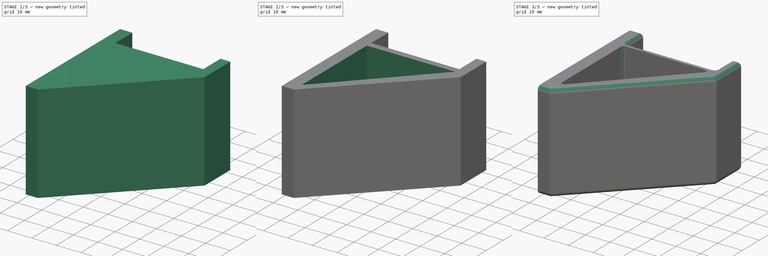
[diagram: build sequence overview — one tinted view per stage of 3, left to right]
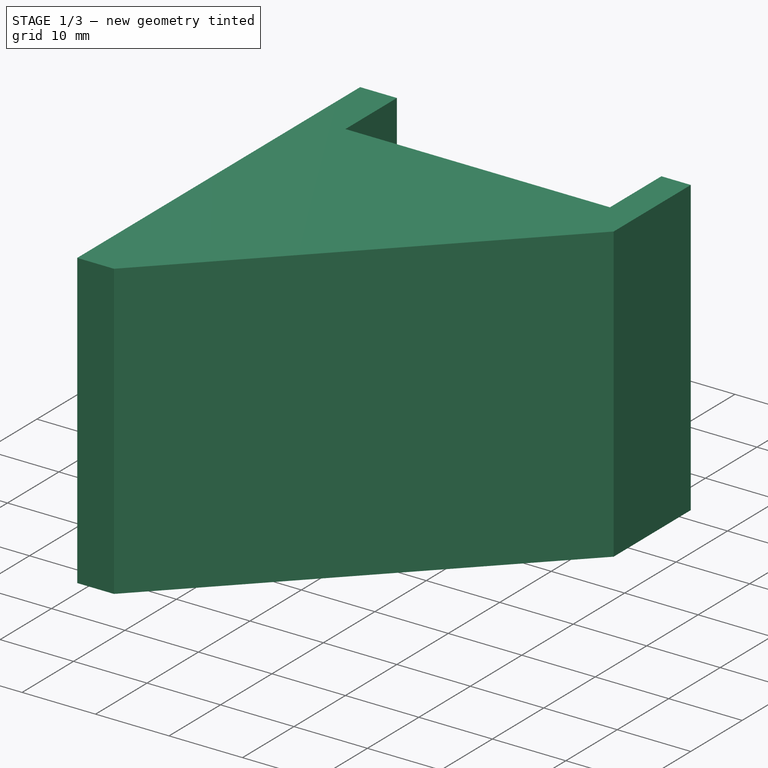
[diagram: stage 1 of 3 — iso view after this stage's code; geometry added in this stage tinted green]
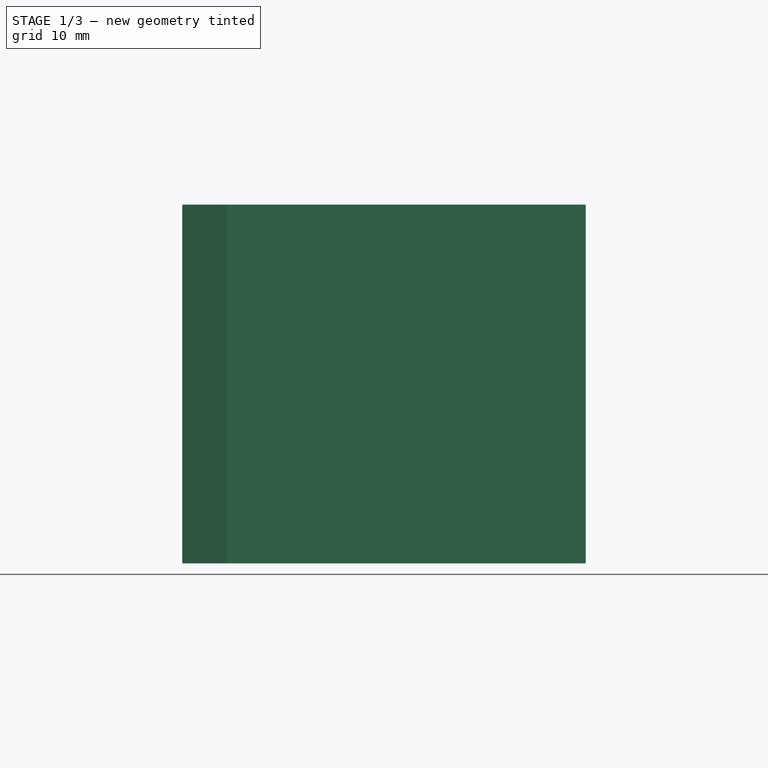
[diagram: stage 1 of 3 — front view after this stage's code; geometry added in this stage tinted green]
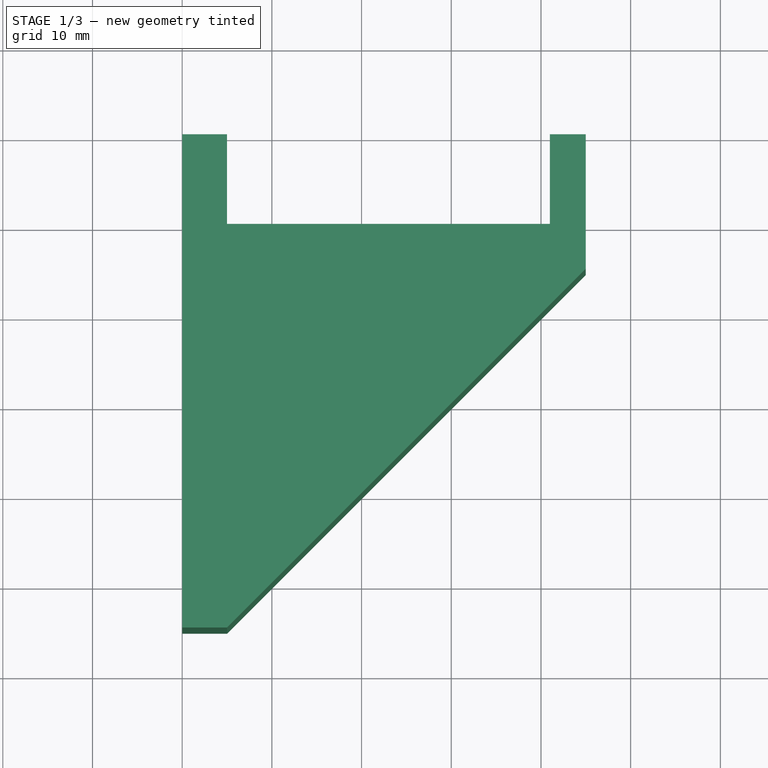
[diagram: stage 1 of 3 — top view after this stage's code; geometry added in this stage tinted green]
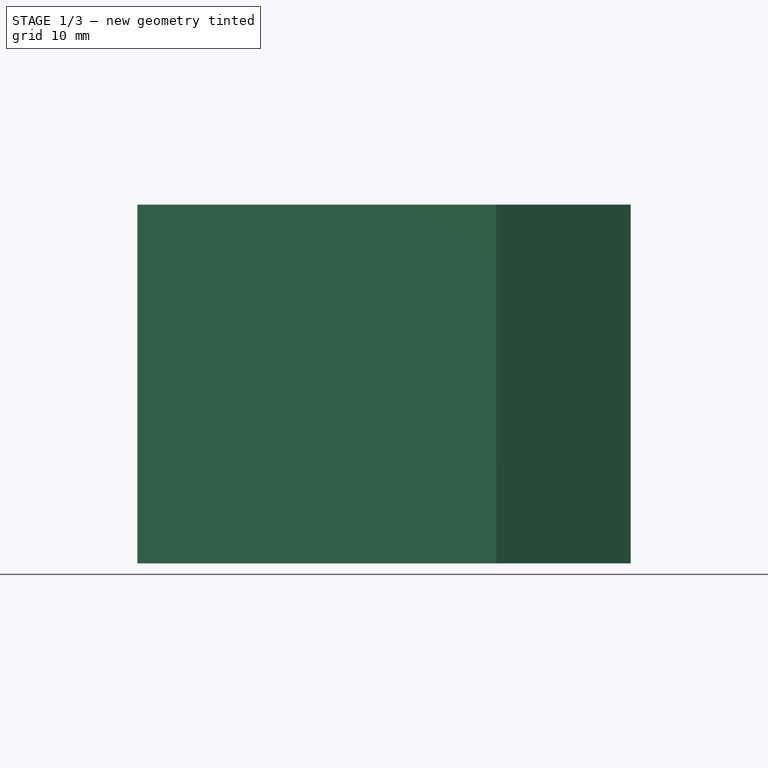
[diagram: stage 1 of 3 — right view after this stage's code; geometry added in this stage tinted green]
FCSTD DOCUMENT  (FreeCAD 1.0R38806 (Git))
Label: hook_support
License: All rights reserved
LicenseURL: https://en.wikipedia.org/wiki/All_rights_reserved
objects: Sketcher::SketchObject×3, PartDesign::Pocket×2, PartDesign::Fillet×2, Spreadsheet::Sheet×1, PartDesign::Pad×1, PartDesign::Body×1
note: 22 computed .brp shape members not serialized (recipe doc carries the construction recipe); baked Part::Feature solids carry a one-line shape summary decoded from their .brp

FEATURE [Spreadsheet::Sheet] Spreadsheet  label="settings"
  cells = A1='total hook width; B1(hook_total_width)=40; A2='total hook length; B2(hook_total_length)=45; A3='total hook height; B3(hook_total_height)=55; A4='hook plate thickness; B4(hook_plate_thickness)=5; A5='hook position from bot; B5(hook_position_from_bot)=45; A6='hook thickness; B6(hook_thickness)=5; A7='hook lip thickness; B7(hook_lip_thickness)=4; A8='hook lip height; B8(hook_lip_height)=10; A9='hook fillet; B9(hook_fillet)=1; A10='hook support thickness; B10(hook_support_thickness)=2; A11='hook side fillet; B11(side_fillet)=1.8; A12='Calculations; A13='half hook thickness; B13(hook_thickness_half)==hook_thickness / 2; C13='Actual hook length; D13==hook_total_length - hook_plate_thickness - hook_lip_thickness; A14='support pocket depth; B14(hook_support_pocket)==(hook_total_width - hook_support_thickness) / 2; A15='Annoying bottom support offset; B15(annoying_bottom_support_offset)==hook_lip_thickness / 2
FEATURE [Sketcher::SketchObject] Sketch
  ArcFitTolerance = 1e-06
  AttachmentSupport = -> [XY_Plane]
  FullyConstrained = true
  MakeInternals = false
  MapMode = 5
  expr: Constraints[10] = <<settings>>.hook_total_height
  expr: Constraints[14] = Spreadsheet.hook_plate_thickness
  expr: Constraints[21] = <<settings>>.hook_position_from_bot
  expr: Constraints[25] = <<settings>>.hook_lip_thickness
  expr: Constraints[34] = <<settings>>.hook_lip_height
  expr: Constraints[35] = <<settings>>.hook_thickness
  expr: Constraints[9] = <<settings>>.hook_total_length
  sketch-geometry (14):
    g0: LineSegment StartX=0 StartY=0 StartZ=0 EndX=0 EndY=-55 EndZ=0
    g1: LineSegment [constr] StartX=0 StartY=-55 StartZ=0 EndX=45 EndY=-55 EndZ=0
    g2: LineSegment [constr] StartX=45 StartY=-55 StartZ=0 EndX=45 EndY=0 EndZ=0
    g3: LineSegment [constr] StartX=45 StartY=0 StartZ=0 EndX=0 EndY=0 EndZ=0
    g4: LineSegment [constr] StartX=5 StartY=0 StartZ=0 EndX=5 EndY=-55 EndZ=0
    g5: LineSegment StartX=0 StartY=0 StartZ=0 EndX=5 EndY=0 EndZ=0
    g6: LineSegment StartX=5 StartY=0 StartZ=0 EndX=5 EndY=-10 EndZ=0
    g7: LineSegment StartX=5 StartY=-10 StartZ=0 EndX=41 EndY=-10 EndZ=0
    g8: LineSegment [constr] StartX=41 StartY=0 StartZ=0 EndX=41 EndY=-55 EndZ=0
    g9: LineSegment StartX=41 StartY=-10 StartZ=0 EndX=41 EndY=8.9e-15 EndZ=0
    g10: LineSegment StartX=41 StartY=8.9e-15 StartZ=0 EndX=45 EndY=8.9e-15 EndZ=0
    g11: LineSegment StartX=45 StartY=8.9e-15 StartZ=0 EndX=45 EndY=-15 EndZ=0
    g12: LineSegment StartX=45 StartY=-15 StartZ=0 EndX=5 EndY=-55 EndZ=0
    g13: LineSegment StartX=0 StartY=-55 StartZ=0 EndX=5 EndY=-55 EndZ=0
  constraints (40):
    c: Coincident(g0,g1)
    c: Coincident(g1,g2)
    c: Coincident(g2,g3)
    c: Coincident(g3,g0)
    c: Vertical(g0)
    c: Vertical(g2)
    c: Horizontal(g1)
    c: Horizontal(g3)
    c: Coincident(g0,g-1)
    c: DistanceX(g3,g3) = 45
    c: DistanceY(g0,g0) = 55
    c: PointOnObject(g4,g3)
    c: PointOnObject(g4,g1)
    c: Vertical(g4)
    c: DistanceX(g0,g4) = 5
    c: Coincident(g5,g0)
    c: Coincident(g5,g4)
    c: Coincident(g6,g4)
    c: PointOnObject(g6,g4)
    c: Coincident(g7,g6)
    c: Horizontal(g7)
    c: DistanceY(g4,g6) = 45
    c: PointOnObject(g8,g3)
    c: PointOnObject(g8,g1)
    c: Vertical(g8)
    c: DistanceX(g8,g2) = 4
    c: PointOnObject(g7,g8)
    c: Coincident(g9,g7)
    c: PointOnObject(g9,g8)
    c: Coincident(g10,g9)
    c: PointOnObject(g10,g2)
    c: Horizontal(g10)
    c: Coincident(g11,g10)
    c: PointOnObject(g11,g2)
    c: DistanceY(g7,g9) = 10
    c: DistanceY(g11,g7) = 5
    c: Coincident(g12,g11)
    c: Coincident(g12,g4)
    c: Coincident(g13,g0)
    c: Coincident(g13,g4)
FEATURE [PartDesign::Pad] Pad  label="main_pad"
  Direction = (0,0,1)
  Length = 40
  Length2 = 10
  Profile = -> Sketch
  ReferenceAxis = -> Sketch [N_Axis]
  Refine = true
  Suppressed = false
  Type = 0
  expr: Length = <<settings>>.hook_total_width
FEATURE [Sketcher::SketchObject] Sketch001
  ArcFitTolerance = 1e-06
  AttachmentSupport = -> [Pad]
  ExternalGeometry = -> [Pad]
  FullyConstrained = true
  MakeInternals = false
  MapMode = 5
  Placement = pos=(0,0,0) rot=(1,0,0;3.14159rad)
  expr: Constraints[7] = <<settings>>.hook_thickness_half
  expr: Constraints[8] = <<settings>>.hook_thickness_half + <<settings>>.annoying_bottom_support_offset
  sketch-geometry (3):
    g0: LineSegment StartX=5 StartY=12.5 StartZ=0 EndX=5 EndY=50.5 EndZ=0
    g1: LineSegment StartX=5 StartY=50.5 StartZ=0 EndX=41 EndY=12.5 EndZ=0
    g2: LineSegment StartX=41 StartY=12.5 StartZ=0 EndX=5 EndY=12.5 EndZ=0
  constraints (9):
    c: Vertical(g0)
    c: Coincident(g1,g0)
    c: Coincident(g2,g1)
    c: Horizontal(g2)
    c: Coincident(g0,g2)
    c: Vertical(g0,g-3)
    c: Vertical(g1,g-3)
    c: DistanceY(g-3,g0) = 2.5
    c: DistanceY(g0,g-4) = 4.5
FEATURE [PartDesign::Pocket] Pocket  label="right_support_pocket"
  BaseFeature = -> Pad
  Direction = (0,0,1)
  Length = 19
  Length2 = 5
  Profile = -> Sketch001
  ReferenceAxis = -> Sketch001 [N_Axis]
  Refine = true
  Suppressed = false
  Type = 0
  expr: Length = <<settings>>.hook_support_pocket
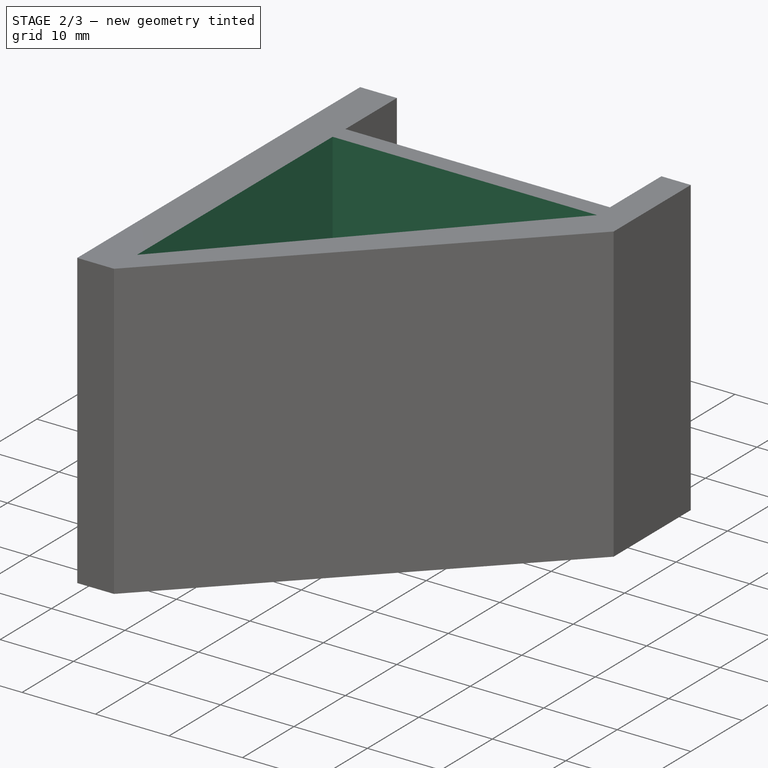
[diagram: stage 2 of 3 — iso view after this stage's code; geometry added in this stage tinted green]
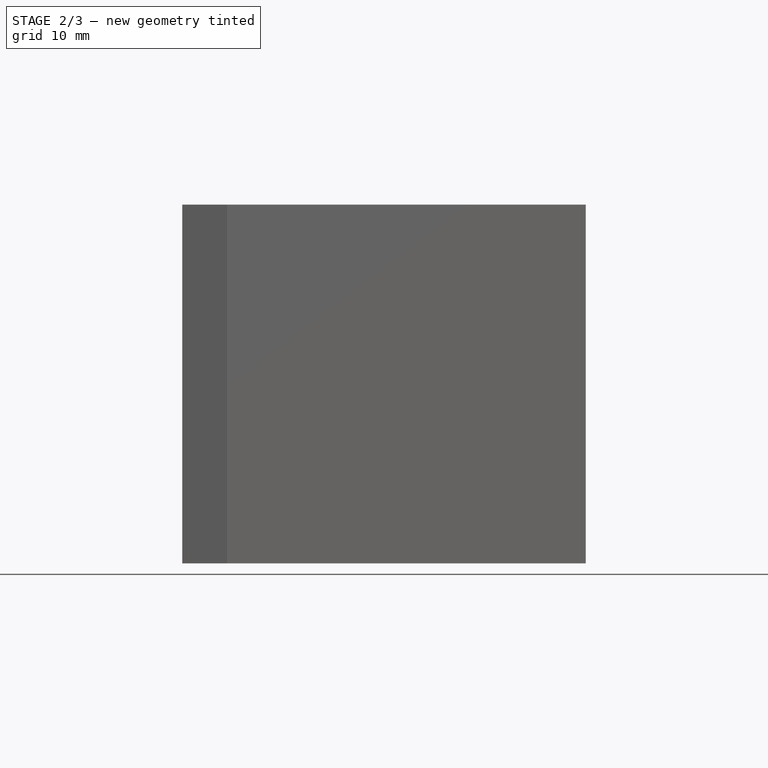
[diagram: stage 2 of 3 — front view after this stage's code; geometry added in this stage tinted green]
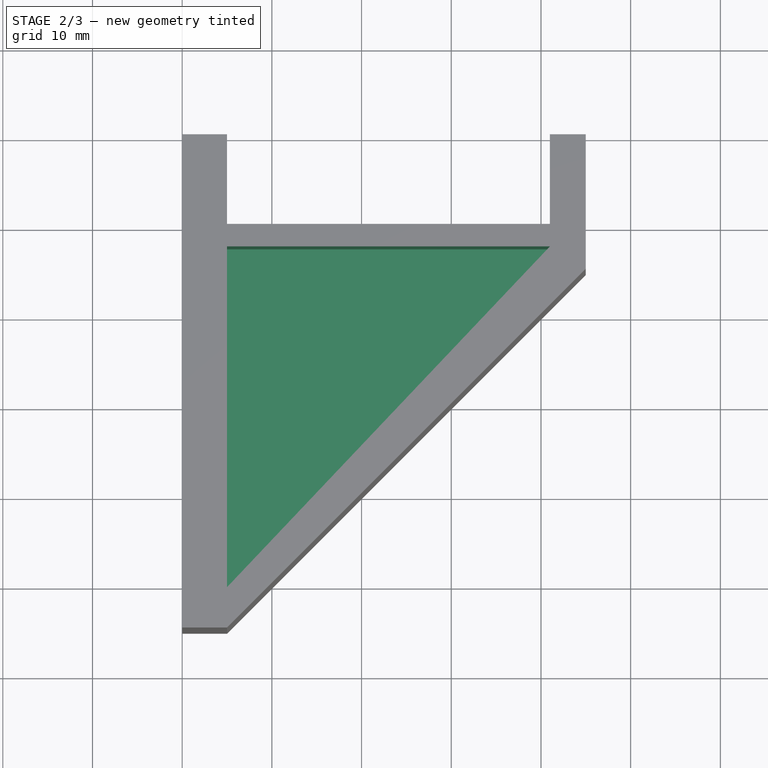
[diagram: stage 2 of 3 — top view after this stage's code; geometry added in this stage tinted green]
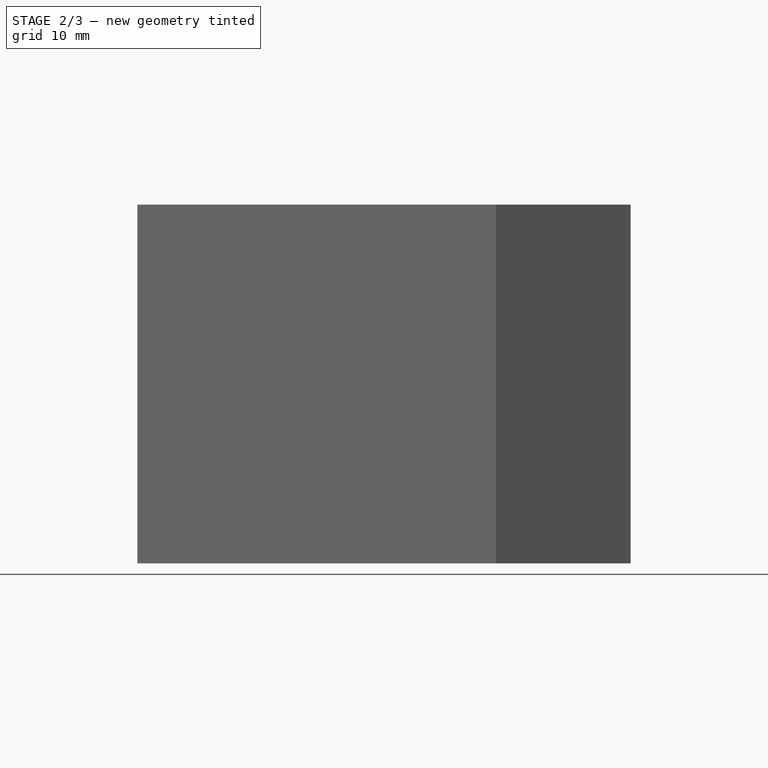
[diagram: stage 2 of 3 — right view after this stage's code; geometry added in this stage tinted green]
FEATURE [Sketcher::SketchObject] Sketch002
  ArcFitTolerance = 1e-06
  AttachmentSupport = -> [Pocket]
  ExternalGeometry = -> [Pocket]
  FullyConstrained = true
  MakeInternals = false
  MapMode = 5
  Placement = pos=(0,0,40) rot=(0,0,1;0rad)
  expr: Constraints[6] = <<settings>>.hook_thickness_half
  expr: Constraints[7] = <<settings>>.hook_thickness_half + <<settings>>.annoying_bottom_support_offset
  sketch-geometry (3):
    g0: LineSegment StartX=5 StartY=-12.5 StartZ=0 EndX=41 EndY=-12.5 EndZ=0
    g1: LineSegment StartX=5 StartY=-12.5 StartZ=0 EndX=5 EndY=-50.5 EndZ=0
    g2: LineSegment StartX=5 StartY=-50.5 StartZ=0 EndX=41 EndY=-12.5 EndZ=0
  constraints (9):
    c: Horizontal(g0)
    c: Coincident(g1,g0)
    c: Vertical(g1)
    c: Coincident(g2,g1)
    c: Coincident(g2,g0)
    c: Vertical(g0,g-3)
    c: DistanceY(g0,g-3) = 2.5
    c: DistanceY(g-4,g1) = 4.5
    c: Vertical(g0,g-3)
FEATURE [PartDesign::Pocket] Pocket001
  BaseFeature = -> Pocket
  Direction = (0,0,-1)
  Length = 19
  Length2 = 5
  Profile = -> Sketch002
  ReferenceAxis = -> Sketch002 [N_Axis]
  Refine = true
  Suppressed = false
  Type = 0
  expr: Length = <<settings>>.hook_support_pocket
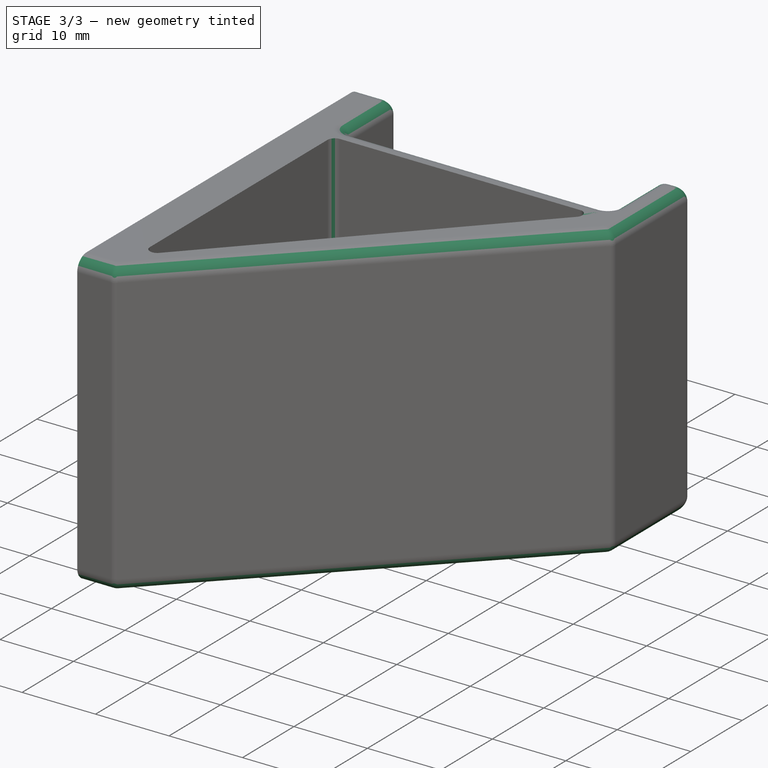
[diagram: stage 3 of 3 — iso view after this stage's code; geometry added in this stage tinted green]
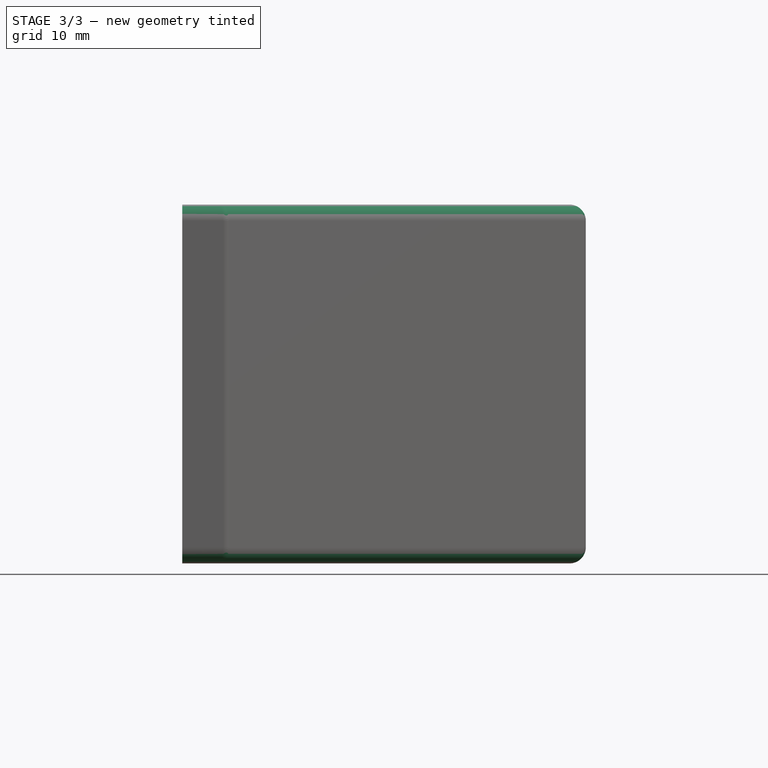
[diagram: stage 3 of 3 — front view after this stage's code; geometry added in this stage tinted green]
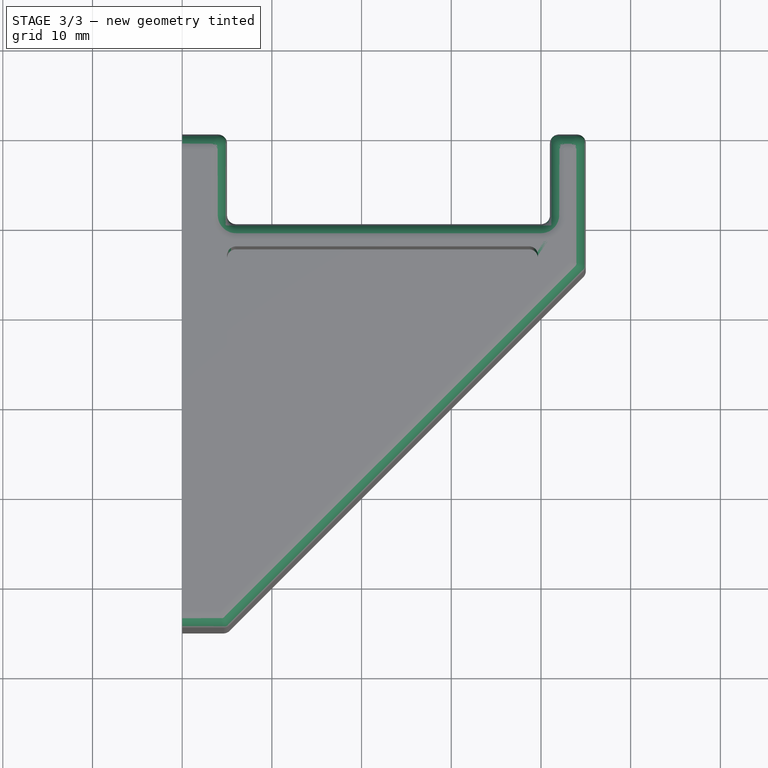
[diagram: stage 3 of 3 — top view after this stage's code; geometry added in this stage tinted green]
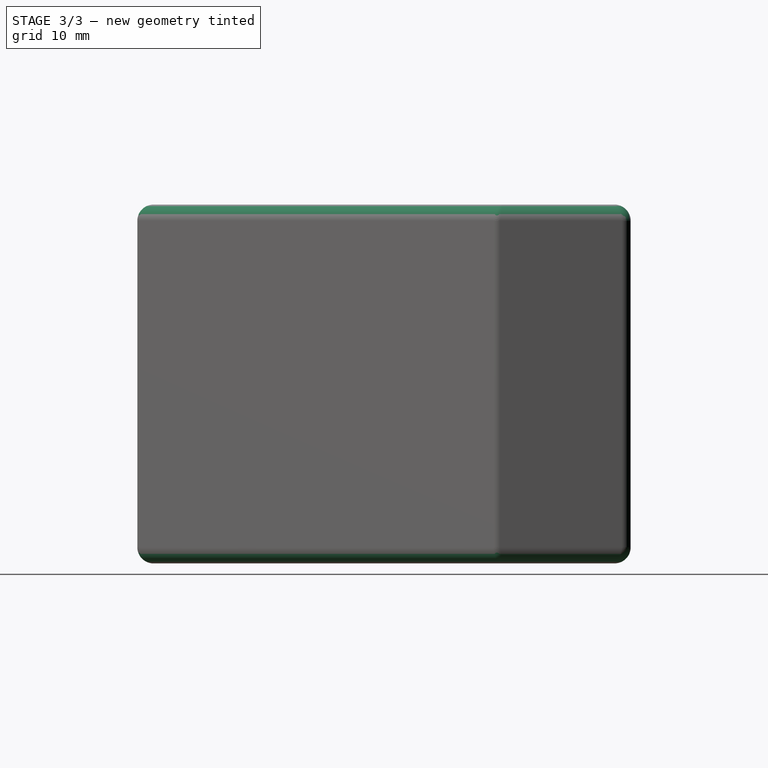
[diagram: stage 3 of 3 — right view after this stage's code; geometry added in this stage tinted green]
FEATURE [PartDesign::Fillet] Fillet  label="flat_fillet"
  Base = -> Pocket001 [Edge5,Edge29,Edge30,Edge32,Edge33,Edge8,Edge31,Edge43,Edge40,Edge41,Edge34,Edge35,Edge37]
  BaseFeature = -> Pocket001
  Radius = 1
  Refine = true
  SupportTransform = false
  Suppressed = false
  UseAllEdges = false
  expr: Radius = <<settings>>.hook_fillet
FEATURE [PartDesign::Fillet] Fillet001  label="side_fillet"
  Base = -> Fillet [Edge34,Edge11]
  BaseFeature = -> Fillet
  Radius = 1.8
  Refine = true
  SupportTransform = false
  Suppressed = false
  UseAllEdges = false
  expr: Radius = <<settings>>.side_fillet
FEATURE [PartDesign::Body] Body
  AllowCompound = false
  Group = -> [Sketch,Pad,Sketch001,Pocket,Sketch002,Pocket001,Fillet,Fillet001]
  Origin = -> Origin
  Tip = -> Fillet001
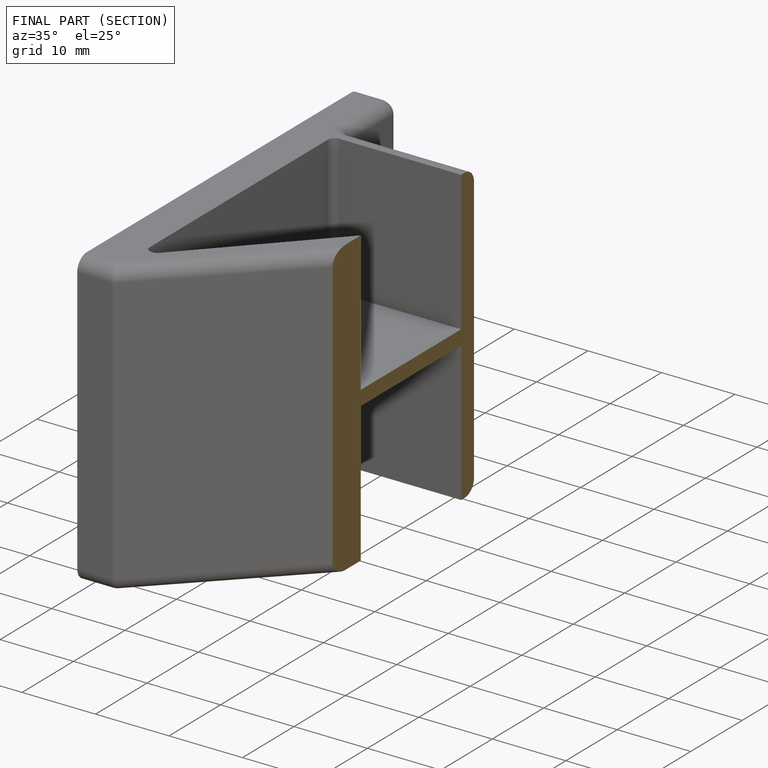
[diagram: finished part — half-section view (interior)]
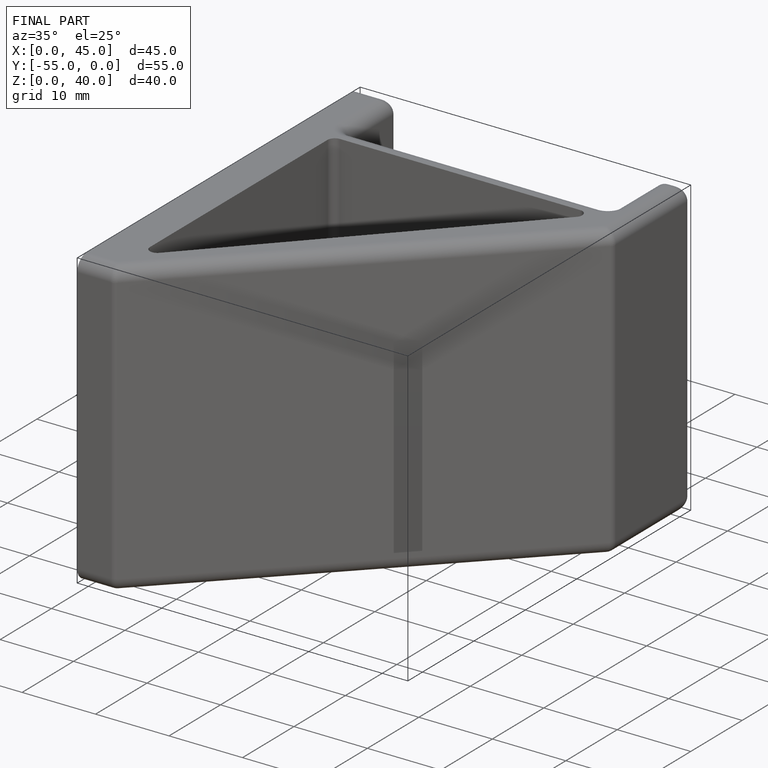
[diagram: finished part — iso view with bounding-box wireframe]
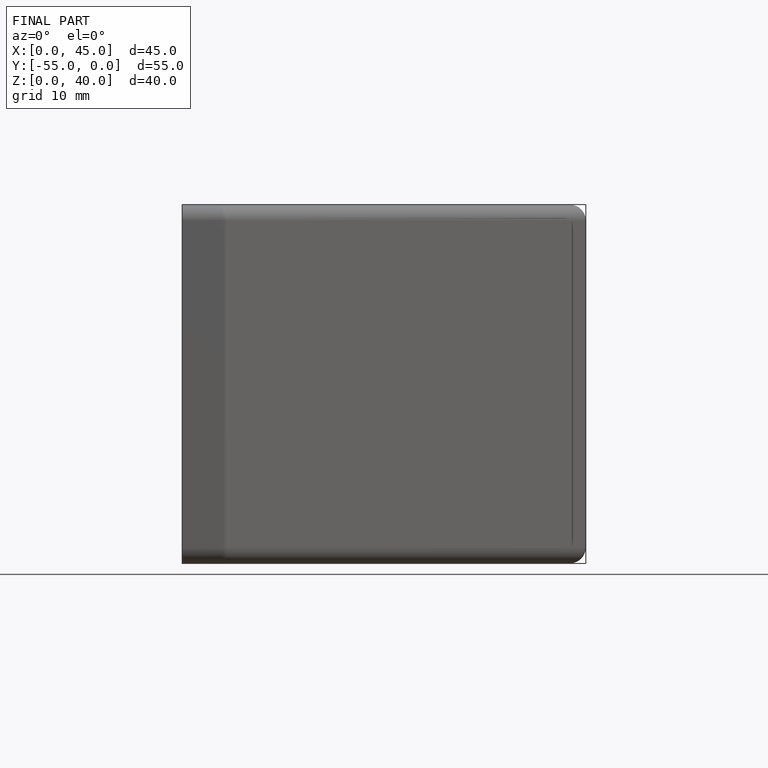
[diagram: finished part — front view with bounding-box wireframe]
